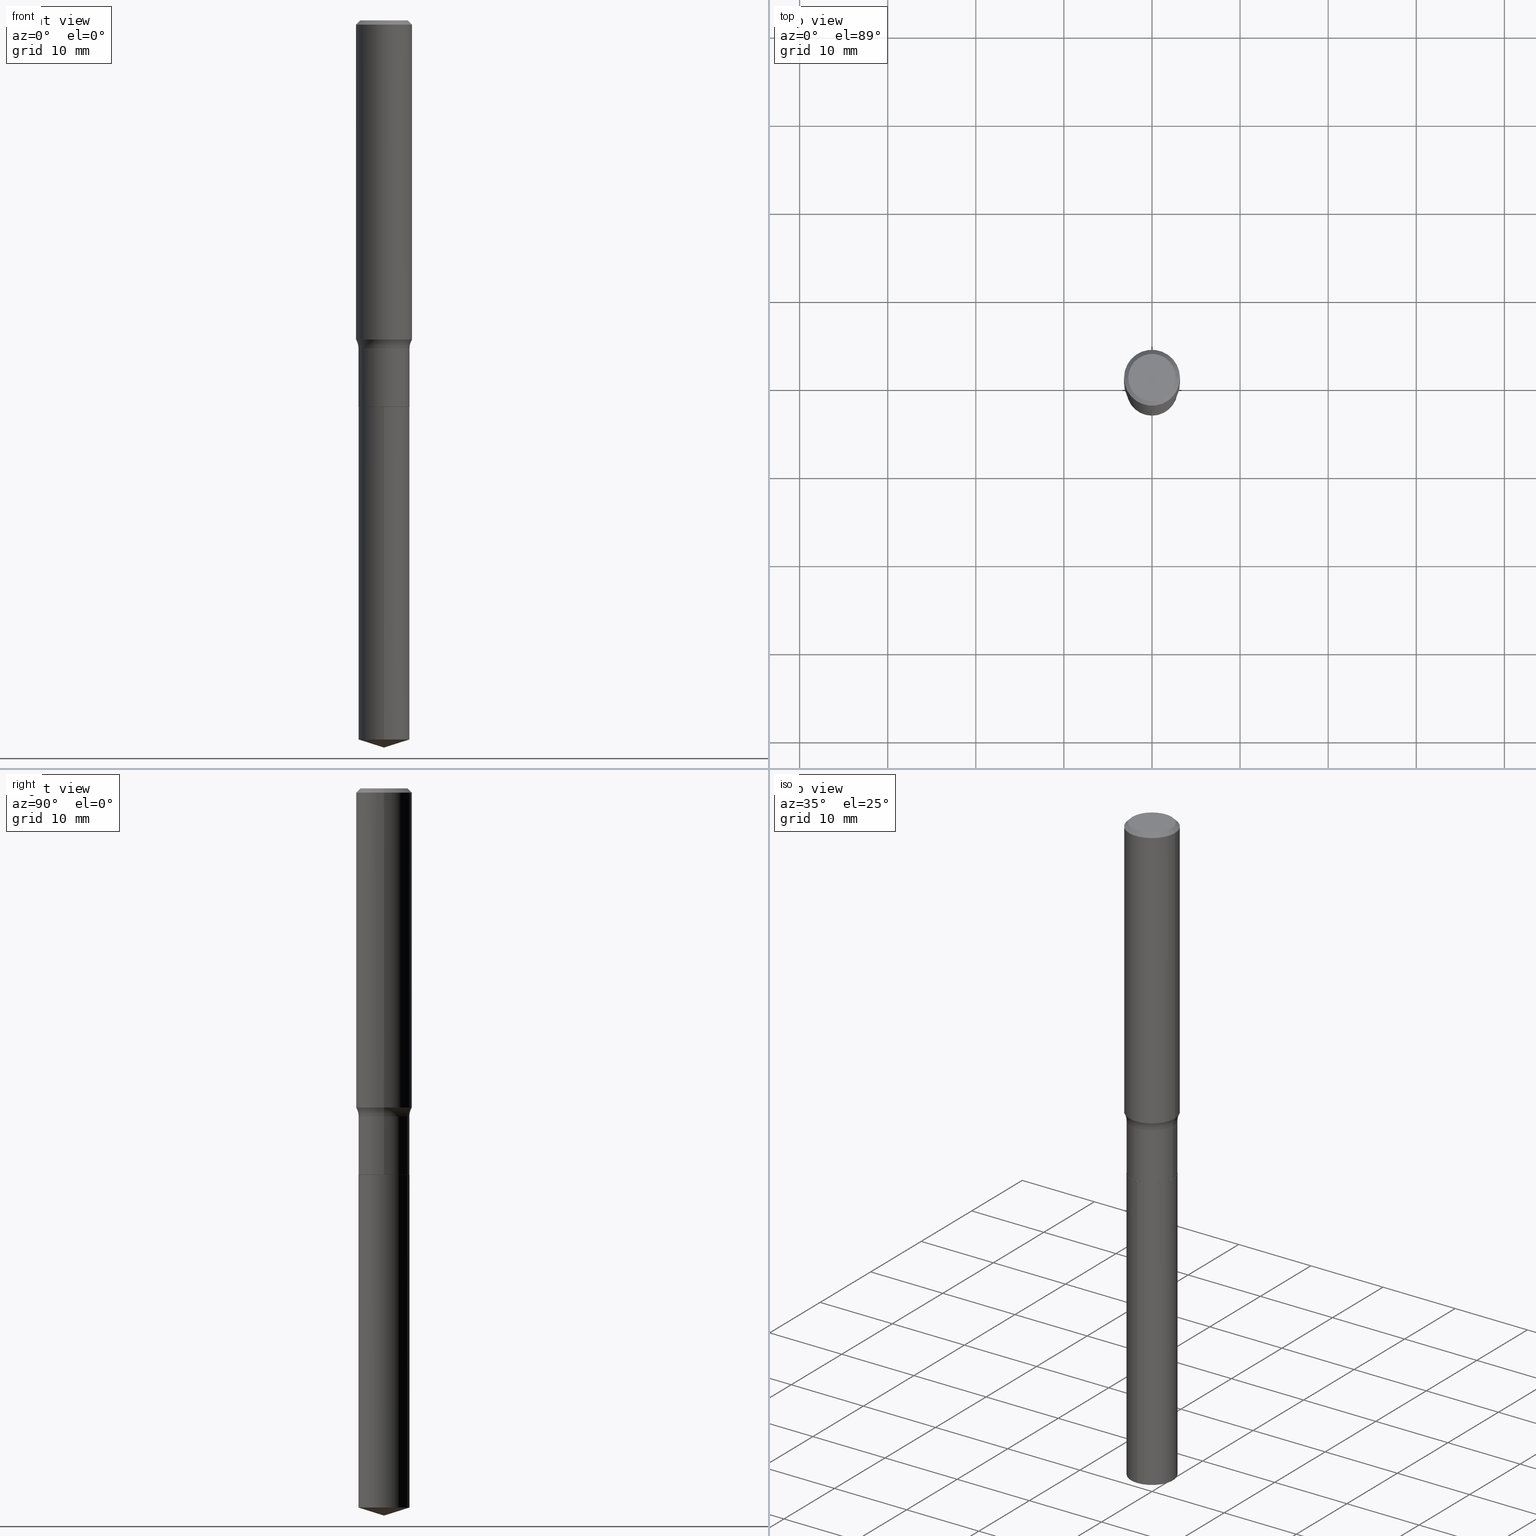
[diagram: canonical four-view strip — front | top / right | iso, engineering-drawing reading convention]
A machine part, canonical four-view strip (front | top / right | iso — engineering-drawing reading convention). The complete STEP part file that produces these views, byte-faithful:
ISO-10303-21;
HEADER;
FILE_DESCRIPTION (( 'STEP AP203' ),
    '1' );
FILE_NAME ('52336.STEP',
    '2024-04-19T13:44:54',
    ( '' ),
    ( '' ),
    'SwSTEP 2.0',
    'SolidWorks 2023',
    '' );
FILE_SCHEMA (( 'CONFIG_CONTROL_DESIGN' ));
ENDSEC;

DATA;
#1 = EDGE_CURVE ( 'NONE', #425, #281, #75, .T. ) ;
#2 = ORIENTED_EDGE ( 'NONE', *, *, #177, .T. ) ;
#3 = DIRECTION ( 'NONE',  ( -6.982962677686265922E-15, -1.000000000000000000, 2.396357889179178137E-15 ) ) ;
#4 = APPROVAL_STATUS ( 'not_yet_approved' ) ;
#5 = AXIS2_PLACEMENT_3D ( 'NONE', #153, #416, #223 ) ;
#6 = DIRECTION ( 'NONE',  ( -2.445468806185136597E-29, 3.491481338843145583E-15, 1.000000000000000000 ) ) ;
#7 = DIRECTION ( 'NONE',  ( -2.445468806185136597E-29, 3.491481338843145583E-15, 1.000000000000000000 ) ) ;
#8 = CONICAL_SURFACE ( 'NONE', #310, 124.8659371009149908, 1.265363707695891460 ) ;
#9 = DIRECTION ( 'NONE',  ( -2.445468806185136597E-29, 3.491481338843145583E-15, 1.000000000000000000 ) ) ;
#10 = PERSON_AND_ORGANIZATION_ROLE ( 'design_owner' ) ;
#11 = ORIENTED_EDGE ( 'NONE', *, *, #163, .T. ) ;
#12 = EDGE_CURVE ( 'NONE', #176, #226, #278, .T. ) ;
#13 = CARTESIAN_POINT ( 'NONE',  ( 3.584568176106173081E-29, -5.117813346476282599E-15, -1.465799999999999992 ) ) ;
#14 = CARTESIAN_POINT ( 'NONE',  ( 3.584568176106173081E-29, -5.117813346476282599E-15, -1.465799999999999992 ) ) ;
#15 = AXIS2_PLACEMENT_3D ( 'NONE', #415, #419, #383 ) ;
#16 = ORIENTED_EDGE ( 'NONE', *, *, #139, .T. ) ;
#17 = VERTEX_POINT ( 'NONE', #433 ) ;
#18 = CC_DESIGN_DATE_AND_TIME_ASSIGNMENT ( #339, #116, ( #309 ) ) ;
#19 = ORIENTED_EDGE ( 'NONE', *, *, #177, .F. ) ;
#20 = AXIS2_PLACEMENT_3D ( 'NONE', #57, #189, #492 ) ;
#21 = VECTOR ( 'NONE', #79, 39.37007874015748143 ) ;
#22 = ORIENTED_EDGE ( 'NONE', *, *, #1, .F. ) ;
#23 = EDGE_LOOP ( 'NONE', ( #242, #333, #434, #202 ) ) ;
#24 = AXIS2_PLACEMENT_3D ( 'NONE', #255, #26, #277 ) ;
#25 = CARTESIAN_POINT ( 'NONE',  ( 0.1250000000000000000, -9.383356098140926809E-16, -0.01875000000000012768 ) ) ;
#26 = DIRECTION ( 'NONE',  ( -2.445468806185136597E-29, 3.491481338843145583E-15, 1.000000000000000000 ) ) ;
#27 = PLANE ( 'NONE',  #301 ) ;
#28 = EDGE_CURVE ( 'NONE', #281, #425, #61, .T. ) ;
#29 = CARTESIAN_POINT ( 'NONE',  ( -0.1250000000000000000, -1.633740458479338781E-15, -0.01875000000000012768 ) ) ;
#30 = SECURITY_CLASSIFICATION_LEVEL ( 'unclassified' ) ;
#31 = DIRECTION ( 'NONE',  ( 1.000000000000000000, -6.982962677686268288E-15, 4.883557194083113462E-29 ) ) ;
#32 = DIRECTION ( 'NONE',  ( 6.776566513254256560E-15, 0.9537169507482287090, 0.3007057995042674015 ) ) ;
#33 = APPROVAL_ROLE ( '' ) ;
#34 = DIRECTION ( 'NONE',  ( 1.000000000000000000, -6.982962677686268288E-15, 0.000000000000000000 ) ) ;
#35 = CC_DESIGN_APPROVAL ( #390, ( #241 ) ) ;
#36 = CARTESIAN_POINT ( 'NONE',  ( 3.584568176106173081E-29, -5.117813346476282599E-15, -1.465799999999999992 ) ) ;
#37 = CARTESIAN_POINT ( 'NONE',  ( 4.225770097087915869E-29, -6.033279753520955359E-15, -1.727999999999999980 ) ) ;
#38 = CIRCLE ( 'NONE', #15, 0.1140000000000000041 ) ;
#39 = DIRECTION ( 'NONE',  ( -6.659769872151631300E-15, -0.9537169507482265995, 0.3007057995042740073 ) ) ;
#40 = ADVANCED_FACE ( 'NONE', ( #395 ), #236, .T. ) ;
#41 = VERTEX_POINT ( 'NONE', #216 ) ;
#42 = DIRECTION ( 'NONE',  ( 1.000000000000000000, -6.982962677686268288E-15, 0.000000000000000000 ) ) ;
#43 = CONICAL_SURFACE ( 'NONE', #5, 0.1135000000000000037, 0.7853981633975507526 ) ;
#44 = EDGE_CURVE ( 'NONE', #251, #176, #185, .T. ) ;
#45 = ORIENTED_EDGE ( 'NONE', *, *, #28, .T. ) ;
#46 = FACE_OUTER_BOUND ( 'NONE', #469, .T. ) ;
#47 = ADVANCED_FACE ( 'NONE', ( #418 ), #27, .F. ) ;
#48 = CARTESIAN_POINT ( 'NONE',  ( 4.585254011597162123E-31, -6.546527510330942834E-17, -0.01875000000000012768 ) ) ;
#49 = APPLICATION_PROTOCOL_DEFINITION ( 'international standard', 'config_control_design', 1994, #224 ) ;
#50 = CARTESIAN_POINT ( 'NONE',  ( 4.224547362684823628E-29, -6.031534012851534644E-15, -1.727500000000000036 ) ) ;
#51 = MECHANICAL_CONTEXT ( 'NONE', #460, 'mechanical' ) ;
#52 = AXIS2_PLACEMENT_3D ( 'NONE', #14, #286, #429 ) ;
#53 = ORIENTED_EDGE ( 'NONE', *, *, #351, .F. ) ;
#54 = CALENDAR_DATE ( 2024, 19, 4 ) ;
#55 = CIRCLE ( 'NONE', #437, 0.1135000000000000037 ) ;
#56 = ORGANIZATION ( 'UNSPECIFIED', 'UNSPECIFIED', '' ) ;
#57 = CARTESIAN_POINT ( 'NONE',  ( 4.585254011597162123E-31, -6.546527510330942834E-17, -0.01875000000000012768 ) ) ;
#58 = EDGE_CURVE ( 'NONE', #145, #446, #489, .T. ) ;
#59 = PERSON_AND_ORGANIZATION ( #367, #56 ) ;
#60 = ORIENTED_EDGE ( 'NONE', *, *, #92, .T. ) ;
#61 = CIRCLE ( 'NONE', #338, 0.1062499999999999972 ) ;
#62 = DIMENSIONAL_EXPONENTS ( 1.000000000000000000, 0.000000000000000000, 0.000000000000000000, 0.000000000000000000, 0.000000000000000000, 0.000000000000000000, 0.000000000000000000 ) ;
#63 = ORIENTED_EDGE ( 'NONE', *, *, #139, .F. ) ;
#64 = AXIS2_PLACEMENT_3D ( 'NONE', #178, #149, #407 ) ;
#65 = DIRECTION ( 'NONE',  ( -2.445468806185136597E-29, 3.491481338843145583E-15, 1.000000000000000000 ) ) ;
#66 = ORIENTED_EDGE ( 'NONE', *, *, #58, .F. ) ;
#67 = EDGE_LOOP ( 'NONE', ( #247, #208, #363, #231 ) ) ;
#68 =( CONVERSION_BASED_UNIT ( 'INCH', #412 ) LENGTH_UNIT ( ) NAMED_UNIT ( #62 ) );
#69 = CARTESIAN_POINT ( 'NONE',  ( 7.947814249978315045E-29, -1.134725670447899003E-14, -3.250000000000000000 ) ) ;
#70 = PERSON_AND_ORGANIZATION ( #367, #56 ) ;
#71 = ADVANCED_FACE ( 'NONE', ( #413 ), #294, .F. ) ;
#72 = CARTESIAN_POINT ( 'NONE',  ( -0.1062499999999999972, 7.746724220558198188E-16, 6.505936120465015526E-18 ) ) ;
#73 = DIRECTION ( 'NONE',  ( -2.445468806185136597E-29, 3.491481338843145583E-15, 1.000000000000000000 ) ) ;
#74 = CYLINDRICAL_SURFACE ( 'NONE', #453, 0.1140000000000000041 ) ;
#75 = CIRCLE ( 'NONE', #272, 0.1062499999999999972 ) ;
#76 = DIRECTION ( 'NONE',  ( -2.445481192190742452E-29, 3.491463601378150534E-15, 1.000000000000000000 ) ) ;
#77 = ADVANCED_FACE ( 'NONE', ( #452 ), #43, .T. ) ;
#78 = DIRECTION ( 'NONE',  ( 0.7071067811865451302, -7.319954787623248157E-15, -0.7071067811865499042 ) ) ;
#79 = DIRECTION ( 'NONE',  ( -2.445468806185136877E-29, 3.491481338843145188E-15, 1.000000000000000000 ) ) ;
#80 = CIRCLE ( 'NONE', #475, 0.1250000000000000000 ) ;
#81 = CONICAL_SURFACE ( 'NONE', #298, 0.1250000000000000000, 0.7853981633974449483 ) ;
#82 = CC_DESIGN_PERSON_AND_ORGANIZATION_ASSIGNMENT ( #70, #256, ( #309 ) ) ;
#83 = CARTESIAN_POINT ( 'NONE',  ( 4.225770097087915869E-29, -6.033279753520955359E-15, -1.727999999999999980 ) ) ;
#84 = LINE ( 'NONE', #268, #194 ) ;
#85 = CIRCLE ( 'NONE', #362, 0.1250000000000000000 ) ;
#86 = CARTESIAN_POINT ( 'NONE',  ( 0.000000000000000000, 0.000000000000000000, 0.000000000000000000 ) ) ;
#87 = ORIENTED_EDGE ( 'NONE', *, *, #334, .T. ) ;
#88 = ADVANCED_FACE ( 'NONE', ( #125 ), #74, .T. ) ;
#89 = DATE_AND_TIME ( #204, #454 ) ;
#90 = VECTOR ( 'NONE', #258, 39.37007874015748143 ) ;
#91 = CIRCLE ( 'NONE', #408, 0.1140000000000000041 ) ;
#92 = EDGE_CURVE ( 'NONE', #481, #41, #113, .T. ) ;
#93 = LINE ( 'NONE', #239, #421 ) ;
#94 = ORIENTED_EDGE ( 'NONE', *, *, #334, .F. ) ;
#95 = CIRCLE ( 'NONE', #327, 0.1140000000000000041 ) ;
#96 = VECTOR ( 'NONE', #76, 39.37007874015748143 ) ;
#97 = AXIS2_PLACEMENT_3D ( 'NONE', #299, #382, #451 ) ;
#98 = CARTESIAN_POINT ( 'NONE',  ( 3.486902385253749219E-29, -4.978372481255620459E-15, -1.425862548904567761 ) ) ;
#99 = APPLICATION_PROTOCOL_DEFINITION ( 'international standard', 'config_control_design', 1994, #460 ) ;
#100 = ORIENTED_EDGE ( 'NONE', *, *, #130, .T. ) ;
#101 = ORIENTED_EDGE ( 'NONE', *, *, #44, .F. ) ;
#102 = CARTESIAN_POINT ( 'NONE',  ( -1.591006383764330940E-46, 2.271535455632768948E-32, 6.505936120470318766E-18 ) ) ;
#103 = CIRCLE ( 'NONE', #329, 0.1250000000000001665 ) ;
#104 = VERTEX_POINT ( 'NONE', #187 ) ;
#105 = AXIS2_PLACEMENT_3D ( 'NONE', #124, #444, #219 ) ;
#106 = DIRECTION ( 'NONE',  ( 1.000000000000000000, -6.982962677686266711E-15, 0.000000000000000000 ) ) ;
#107 = LINE ( 'NONE', #261, #199 ) ;
#108 = VERTEX_POINT ( 'NONE', #183 ) ;
#109 = APPROVAL_DATE_TIME ( #356, #390 ) ;
#110 = ORIENTED_EDGE ( 'NONE', *, *, #287, .T. ) ;
#111 = DIRECTION ( 'NONE',  ( -2.445481192190742172E-29, 3.491463601378150534E-15, 1.000000000000000000 ) ) ;
#112 = DIRECTION ( 'NONE',  ( -0.7071067811866199593, 7.493145998870616062E-15, 0.7071067811864750752 ) ) ;
#113 = LINE ( 'NONE', #69, #114 ) ;
#114 = VECTOR ( 'NONE', #32, 39.37007874015748143 ) ;
#115 = PRODUCT_RELATED_PRODUCT_CATEGORY ( 'detail', '', ( #316 ) ) ;
#116 = DATE_TIME_ROLE ( 'classification_date' ) ;
#117 = ORIENTED_EDGE ( 'NONE', *, *, #243, .F. ) ;
#118 = CARTESIAN_POINT ( 'NONE',  ( -0.1919999999999999485, -3.753571293816890609E-15, -1.465799999999999992 ) ) ;
#119 = DIRECTION ( 'NONE',  ( 1.000000000000000000, -6.982962677686269077E-15, 0.000000000000000000 ) ) ;
#120 = AXIS2_PLACEMENT_3D ( 'NONE', #386, #346, #42 ) ;
#121 = DIRECTION ( 'NONE',  ( -2.445481192190742172E-29, 3.491463601378150534E-15, 1.000000000000000000 ) ) ;
#122 = EDGE_CURVE ( 'NONE', #235, #226, #450, .T. ) ;
#123 = VECTOR ( 'NONE', #341, 39.37007874015748143 ) ;
#124 = CARTESIAN_POINT ( 'NONE',  ( 4.225770097087915869E-29, -6.033279753520955359E-15, -1.727999999999999980 ) ) ;
#125 = FACE_OUTER_BOUND ( 'NONE', #431, .T. ) ;
#126 = AXIS2_PLACEMENT_3D ( 'NONE', #190, #336, #150 ) ;
#127 = DIRECTION ( 'NONE',  ( -0.7071067811865451302, 2.468850131082231817E-15, -0.7071067811865499042 ) ) ;
#128 = AXIS2_PLACEMENT_3D ( 'NONE', #373, #121, #488 ) ;
#129 = CARTESIAN_POINT ( 'NONE',  ( 0.1140000000000000041, -6.827591758107768670E-15, -1.727500000000000036 ) ) ;
#130 = EDGE_CURVE ( 'NONE', #251, #235, #91, .T. ) ;
#131 = CARTESIAN_POINT ( 'NONE',  ( 3.486902385253749219E-29, -4.978372481255620459E-15, -1.425862548904567761 ) ) ;
#132 = EDGE_LOOP ( 'NONE', ( #142, #138, #63, #312 ) ) ;
#133 = APPROVAL_STATUS ( 'not_yet_approved' ) ;
#134 = CARTESIAN_POINT ( 'NONE',  ( 0.1250000000000001943, -5.851242815966405376E-15, -1.425862548904567761 ) ) ;
#135 = ADVANCED_FACE ( 'NONE', ( #146 ), #170, .T. ) ;
#136 = AXIS2_PLACEMENT_3D ( 'NONE', #36, #456, #31 ) ;
#137 = DIRECTION ( 'NONE',  ( -2.445468806185136597E-29, 3.491481338843145583E-15, 1.000000000000000000 ) ) ;
#138 = ORIENTED_EDGE ( 'NONE', *, *, #317, .T. ) ;
#139 = EDGE_CURVE ( 'NONE', #235, #251, #95, .T. ) ;
#140 = ORIENTED_EDGE ( 'NONE', *, *, #361, .F. ) ;
#141 = CYLINDRICAL_SURFACE ( 'NONE', #64, 0.1250000000000000833 ) ;
#142 = ORIENTED_EDGE ( 'NONE', *, *, #409, .T. ) ;
#143 = ORIENTED_EDGE ( 'NONE', *, *, #28, .F. ) ;
#144 = CYLINDRICAL_SURFACE ( 'NONE', #248, 0.1140000000000000041 ) ;
#145 = VERTEX_POINT ( 'NONE', #134 ) ;
#146 = FACE_OUTER_BOUND ( 'NONE', #67, .T. ) ;
#147 = EDGE_CURVE ( 'NONE', #481, #350, #84, .T. ) ;
#148 = EDGE_LOOP ( 'NONE', ( #397, #22, #403, #240 ) ) ;
#149 = DIRECTION ( 'NONE',  ( -2.445468806185136597E-29, 3.491481338843145583E-15, 1.000000000000000000 ) ) ;
#150 = DIRECTION ( 'NONE',  ( 1.000000000000000000, -6.982962677686267499E-15, 4.876176775795936353E-29 ) ) ;
#151 = LOCAL_TIME ( 9, 44, 54.00000000000000000, #166 ) ;
#152 = CYLINDRICAL_SURFACE ( 'NONE', #126, 0.1139999999999999764 ) ;
#153 = CARTESIAN_POINT ( 'NONE',  ( 4.225770097087915869E-29, -6.033279753520955359E-15, -1.727999999999999980 ) ) ;
#154 = EDGE_CURVE ( 'NONE', #425, #321, #222, .T. ) ;
#155 = FACE_OUTER_BOUND ( 'NONE', #148, .T. ) ;
#156 = CARTESIAN_POINT ( 'NONE',  ( 0.1250000000000000833, -8.728703347107839305E-16, 6.095220969744923945E-30 ) ) ;
#157 = ORIENTED_EDGE ( 'NONE', *, *, #92, .F. ) ;
#158 = CARTESIAN_POINT ( 'NONE',  ( -0.1135000000000000037, -5.224164521259130914E-15, -1.727999999999999980 ) ) ;
#159 = ADVANCED_FACE ( 'NONE', ( #343 ), #270, .T. ) ;
#160 = DATE_AND_TIME ( #54, #151 ) ;
#161 = LOCAL_TIME ( 9, 44, 54.00000000000000000, #296 ) ;
#162 = DIRECTION ( 'NONE',  ( 1.000000000000000000, -6.982962677686265133E-15, 0.000000000000000000 ) ) ;
#163 = EDGE_CURVE ( 'NONE', #41, #175, #491, .T. ) ;
#164 = AXIS2_PLACEMENT_3D ( 'NONE', #118, #295, #442 ) ;
#165 = CARTESIAN_POINT ( 'NONE',  ( -0.1140000000000000041, -4.764654960897394479E-15, -1.727500000000000036 ) ) ;
#166 = COORDINATED_UNIVERSAL_TIME_OFFSET ( 5, 0, .BEHIND. ) ;
#167 = DIRECTION ( 'NONE',  ( 1.000000000000000000, -6.982962677686268288E-15, 4.883557194083113462E-29 ) ) ;
#168 = APPROVAL_DATE_TIME ( #89, #455 ) ;
#169 = ORIENTED_EDGE ( 'NONE', *, *, #351, .T. ) ;
#170 = CONICAL_SURFACE ( 'NONE', #400, 0.1135000000000000037, 0.7853981633975507526 ) ;
#171 = ADVANCED_FACE ( 'NONE', ( #155 ), #81, .T. ) ;
#172 = DIRECTION ( 'NONE',  ( -2.445481192190742172E-29, 3.491463601378150534E-15, 1.000000000000000000 ) ) ;
#173 = ORIENTED_EDGE ( 'NONE', *, *, #249, .F. ) ;
#174 = CIRCLE ( 'NONE', #120, 0.07800000000000002764 ) ;
#175 = VERTEX_POINT ( 'NONE', #230 ) ;
#176 = VERTEX_POINT ( 'NONE', #426 ) ;
#177 = EDGE_CURVE ( 'NONE', #145, #226, #174, .T. ) ;
#178 = CARTESIAN_POINT ( 'NONE',  ( 0.000000000000000000, 0.000000000000000000, 0.000000000000000000 ) ) ;
#179 = CIRCLE ( 'NONE', #342, 0.1139999999999999625 ) ;
#180 = MANIFOLD_SOLID_BREP ( 'Body-Move/Copy2[1]', #285 ) ;
#181 = EDGE_CURVE ( 'NONE', #404, #108, #297, .T. ) ;
#182 = CARTESIAN_POINT ( 'NONE',  ( 4.585254011597162123E-31, -6.546527510330942834E-17, -0.01875000000000012768 ) ) ;
#183 = CARTESIAN_POINT ( 'NONE',  ( 0.1135000000000000037, -6.825846017438347167E-15, -1.727999999999999980 ) ) ;
#184 = CALENDAR_DATE ( 2024, 19, 4 ) ;
#185 = LINE ( 'NONE', #445, #123 ) ;
#186 = LINE ( 'NONE', #487, #471 ) ;
#187 = CARTESIAN_POINT ( 'NONE',  ( -7.960577452561921181E-16, -0.1140000000000060271, -1.727999999999999758 ) ) ;
#188 = LOCAL_TIME ( 9, 44, 54.00000000000000000, #477 ) ;
#189 = DIRECTION ( 'NONE',  ( 2.445468806185136597E-29, -3.491481338843145583E-15, -1.000000000000000000 ) ) ;
#190 = CARTESIAN_POINT ( 'NONE',  ( 0.000000000000000000, 0.000000000000000000, 0.000000000000000000 ) ) ;
#191 = ORIENTED_EDGE ( 'NONE', *, *, #122, .T. ) ;
#192 = DIRECTION ( 'NONE',  ( -2.445468806185136597E-29, 3.491481338843145583E-15, 1.000000000000000000 ) ) ;
#193 = CC_DESIGN_PERSON_AND_ORGANIZATION_ASSIGNMENT ( #323, #411, ( #241 ) ) ;
#194 = VECTOR ( 'NONE', #39, 39.37007874015748854 ) ;
#195 = FACE_OUTER_BOUND ( 'NONE', #359, .T. ) ;
#196 = DIRECTION ( 'NONE',  ( 1.000000000000000000, -6.982962677686266711E-15, 0.000000000000000000 ) ) ;
#197 = CC_DESIGN_PERSON_AND_ORGANIZATION_ASSIGNMENT ( #234, #10, ( #316 ) ) ;
#198 = CALENDAR_DATE ( 2024, 19, 4 ) ;
#199 = VECTOR ( 'NONE', #112, 39.37007874015748143 ) ;
#200 = COORDINATED_UNIVERSAL_TIME_OFFSET ( 5, 0, .BEHIND. ) ;
#201 = CARTESIAN_POINT ( 'NONE',  ( 4.225770097087915869E-29, -6.033279753520955359E-15, -1.727999999999999980 ) ) ;
#202 = ORIENTED_EDGE ( 'NONE', *, *, #448, .F. ) ;
#203 = ADVANCED_FACE ( 'NONE', ( #195 ), #463, .F. ) ;
#204 = CALENDAR_DATE ( 2024, 19, 4 ) ;
#205 = ORIENTED_EDGE ( 'NONE', *, *, #1, .T. ) ;
#206 = AXIS2_PLACEMENT_3D ( 'NONE', #131, #271, #119 ) ;
#207 = ORIENTED_EDGE ( 'NONE', *, *, #147, .F. ) ;
#208 = ORIENTED_EDGE ( 'NONE', *, *, #181, .T. ) ;
#209 = CIRCLE ( 'NONE', #164, 0.07800000000000002764 ) ;
#210 = DIRECTION ( 'NONE',  ( 1.000000000000000000, -6.982962677686266711E-15, 4.875930095424100059E-29 ) ) ;
#211 = ORIENTED_EDGE ( 'NONE', *, *, #228, .F. ) ;
#212 = CARTESIAN_POINT ( 'NONE',  ( 7.947813874619912198E-29, -1.134725670447899003E-14, -3.250000000000000000 ) ) ;
#213 = PRODUCT_DEFINITION ( 'UNKNOWN', '', #241, #423 ) ;
#214 = ORIENTED_EDGE ( 'NONE', *, *, #44, .T. ) ;
#215 = PERSON_AND_ORGANIZATION_ROLE ( 'creator' ) ;
#216 = CARTESIAN_POINT ( 'NONE',  ( 8.100187187665928313E-16, 0.1139999999999888047, -3.214055938067796880 ) ) ;
#217 = CARTESIAN_POINT ( 'NONE',  ( 4.225770097087915869E-29, -6.033279753520955359E-15, -1.727999999999999980 ) ) ;
#218 = PERSON_AND_ORGANIZATION ( #367, #56 ) ;
#219 = DIRECTION ( 'NONE',  ( -6.982962677686265922E-15, -1.000000000000000000, 2.396357889179178137E-15 ) ) ;
#220 = AXIS2_PLACEMENT_3D ( 'NONE', #250, #254, #245 ) ;
#221 = CC_DESIGN_APPROVAL ( #274, ( #309 ) ) ;
#222 = LINE ( 'NONE', #374, #399 ) ;
#223 = DIRECTION ( 'NONE',  ( 1.000000000000000000, -6.982962677686268288E-15, 0.000000000000000000 ) ) ;
#224 = APPLICATION_CONTEXT ( 'configuration controlled 3d designs of mechanical parts and assemblies' ) ;
#225 = ORIENTED_EDGE ( 'NONE', *, *, #409, .F. ) ;
#226 = VERTEX_POINT ( 'NONE', #306 ) ;
#227 = DIRECTION ( 'NONE',  ( 2.445468806185136597E-29, -3.491481338843145583E-15, -1.000000000000000000 ) ) ;
#228 = EDGE_CURVE ( 'NONE', #350, #104, #186, .T. ) ;
#229 = ORIENTED_EDGE ( 'NONE', *, *, #357, .T. ) ;
#230 = CARTESIAN_POINT ( 'NONE',  ( 8.100187187665930286E-16, 0.1139999999999939950, -1.728000000000000203 ) ) ;
#231 = ORIENTED_EDGE ( 'NONE', *, *, #130, .F. ) ;
#232 = ORIENTED_EDGE ( 'NONE', *, *, #12, .T. ) ;
#233 = CC_DESIGN_PERSON_AND_ORGANIZATION_ASSIGNMENT ( #465, #354, ( #213 ) ) ;
#234 = PERSON_AND_ORGANIZATION ( #367, #56 ) ;
#235 = VERTEX_POINT ( 'NONE', #129 ) ;
#236 = CONICAL_SURFACE ( 'NONE', #20, 0.1250000000000000000, 0.7853981633974449483 ) ;
#237 = DIRECTION ( 'NONE',  ( 1.000000000000000000, 0.000000000000000000, 0.000000000000000000 ) ) ;
#238 = CONICAL_SURFACE ( 'NONE', #128, 124.8659371009149908, 1.265363707695891460 ) ;
#239 = CARTESIAN_POINT ( 'NONE',  ( 0.1135000000000000037, -6.825846017438347167E-15, -1.727999999999999980 ) ) ;
#240 = ORIENTED_EDGE ( 'NONE', *, *, #448, .T. ) ;
#241 = PRODUCT_DEFINITION_FORMATION_WITH_SPECIFIED_SOURCE ( 'ANY', '', #316, .NOT_KNOWN. ) ;
#242 = ORIENTED_EDGE ( 'NONE', *, *, #484, .F. ) ;
#243 = EDGE_CURVE ( 'NONE', #17, #145, #485, .T. ) ;
#244 = ORIENTED_EDGE ( 'NONE', *, *, #154, .F. ) ;
#245 = DIRECTION ( 'NONE',  ( -1.000000000000000000, 6.982962677686265922E-15, -4.876176775795935793E-29 ) ) ;
#246 = CARTESIAN_POINT ( 'NONE',  ( -1.591006383764330940E-46, 2.271535455632768948E-32, 6.505936120470318766E-18 ) ) ;
#247 = ORIENTED_EDGE ( 'NONE', *, *, #317, .F. ) ;
#248 = AXIS2_PLACEMENT_3D ( 'NONE', #201, #172, #288 ) ;
#249 = EDGE_CURVE ( 'NONE', #175, #104, #398, .T. ) ;
#250 = CARTESIAN_POINT ( 'NONE',  ( -7.955031918821654702E-47, 1.135767727816384474E-32, 3.252968060235159383E-18 ) ) ;
#251 = VERTEX_POINT ( 'NONE', #165 ) ;
#252 = DATE_AND_TIME ( #184, #161 ) ;
#253 = EDGE_LOOP ( 'NONE', ( #87, #440 ) ) ;
#254 = DIRECTION ( 'NONE',  ( 2.438088387897960049E-29, -3.491481338843145188E-15, -1.000000000000000000 ) ) ;
#255 = CARTESIAN_POINT ( 'NONE',  ( 0.000000000000000000, 0.000000000000000000, 0.000000000000000000 ) ) ;
#256 = PERSON_AND_ORGANIZATION_ROLE ( 'classification_officer' ) ;
#257 = FACE_OUTER_BOUND ( 'NONE', #304, .T. ) ;
#258 = DIRECTION ( 'NONE',  ( -2.445468806185136877E-29, 3.491481338843145188E-15, 1.000000000000000000 ) ) ;
#259 = CC_DESIGN_PERSON_AND_ORGANIZATION_ASSIGNMENT ( #480, #215, ( #241 ) ) ;
#260 = APPROVAL_STATUS ( 'not_yet_approved' ) ;
#261 = CARTESIAN_POINT ( 'NONE',  ( -0.1135000000000000037, -5.226813748433241326E-15, -1.727999999999999980 ) ) ;
#262 = DIRECTION ( 'NONE',  ( -2.445468806185136597E-29, 3.491481338843145583E-15, 1.000000000000000000 ) ) ;
#263 = DIRECTION ( 'NONE',  ( -2.445481192190742452E-29, 3.491463601378150534E-15, 1.000000000000000000 ) ) ;
#264 = DIRECTION ( 'NONE',  ( 1.000000000000000000, -6.982962677686267499E-15, 0.000000000000000000 ) ) ;
#265 = DIRECTION ( 'NONE',  ( 1.000000000000000000, -6.982962677686269077E-15, 0.000000000000000000 ) ) ;
#266 = CARTESIAN_POINT ( 'NONE',  ( -7.960577452561559291E-16, -0.1140000000000112312, -3.214055938067795548 ) ) ;
#267 = DIRECTION ( 'NONE',  ( -2.445481192190742172E-29, 3.491463601378150534E-15, 1.000000000000000000 ) ) ;
#268 = CARTESIAN_POINT ( 'NONE',  ( 7.947771068584539762E-29, -1.134731800515801468E-14, -3.250000000000000000 ) ) ;
#269 = ADVANCED_FACE ( 'NONE', ( #462 ), #353, .F. ) ;
#270 = CYLINDRICAL_SURFACE ( 'NONE', #97, 0.1250000000000000833 ) ;
#271 = DIRECTION ( 'NONE',  ( -2.445468806185136597E-29, 3.491481338843145583E-15, 1.000000000000000000 ) ) ;
#272 = AXIS2_PLACEMENT_3D ( 'NONE', #102, #137, #360 ) ;
#273 = DIRECTION ( 'NONE',  ( -1.000000000000000000, 6.982962677686266711E-15, 0.000000000000000000 ) ) ;
#274 = APPROVAL ( #260, 'UNSPECIFIED' ) ;
#275 = APPROVAL_PERSON_ORGANIZATION ( #59, #455, #391 ) ;
#276 = APPROVAL_ROLE ( '' ) ;
#277 = DIRECTION ( 'NONE',  ( 1.000000000000000000, -6.982962677686267499E-15, 4.876176775795936353E-29 ) ) ;
#278 = CIRCLE ( 'NONE', #52, 0.1139999999999999625 ) ;
#279 = EDGE_LOOP ( 'NONE', ( #366, #11, #94, #211 ) ) ;
#280 = CC_DESIGN_DATE_AND_TIME_ASSIGNMENT ( #160, #308, ( #213 ) ) ;
#281 = VERTEX_POINT ( 'NONE', #468 ) ;
#282 = PRODUCT_DEFINITION_SHAPE ( 'NONE', 'NONE',  #213 ) ;
#283 = ORIENTED_EDGE ( 'NONE', *, *, #228, .T. ) ;
#284 = DIRECTION ( 'NONE',  ( -2.445468806185136597E-29, 3.491481338843145583E-15, 1.000000000000000000 ) ) ;
#285 = CLOSED_SHELL ( 'NONE', ( #313, #320, #303, #88, #47 ) ) ;
#286 = DIRECTION ( 'NONE',  ( -2.445468806185136597E-29, 3.491481338843145583E-15, 1.000000000000000000 ) ) ;
#287 = EDGE_CURVE ( 'NONE', #145, #17, #103, .T. ) ;
#288 = DIRECTION ( 'NONE',  ( -6.982962677686265922E-15, -1.000000000000000000, 2.396357889179178137E-15 ) ) ;
#289 = ORIENTED_EDGE ( 'NONE', *, *, #122, .F. ) ;
#290 = CIRCLE ( 'NONE', #105, 0.1140000000000000041 ) ;
#291 = FACE_OUTER_BOUND ( 'NONE', #466, .T. ) ;
#292 = SHAPE_DEFINITION_REPRESENTATION ( #282, #479 ) ;
#293 = EDGE_LOOP ( 'NONE', ( #53, #464, #2, #470 ) ) ;
#294 = PLANE ( 'NONE',  #369 ) ;
#295 = DIRECTION ( 'NONE',  ( 7.105427357601001859E-15, 1.000000000000000000, -3.491481338843145583E-15 ) ) ;
#296 = COORDINATED_UNIVERSAL_TIME_OFFSET ( 5, 0, .BEHIND. ) ;
#297 = CIRCLE ( 'NONE', #311, 0.1135000000000000037 ) ;
#298 = AXIS2_PLACEMENT_3D ( 'NONE', #457, #227, #273 ) ;
#299 = CARTESIAN_POINT ( 'NONE',  ( 0.000000000000000000, 0.000000000000000000, 0.000000000000000000 ) ) ;
#300 = DIRECTION ( 'NONE',  ( -2.438088387897960049E-29, 3.491481338843145188E-15, 1.000000000000000000 ) ) ;
#301 = AXIS2_PLACEMENT_3D ( 'NONE', #37, #337, #375 ) ;
#302 = ORIENTED_EDGE ( 'NONE', *, *, #163, .F. ) ;
#303 = ADVANCED_FACE ( 'NONE', ( #46 ), #8, .T. ) ;
#304 = EDGE_LOOP ( 'NONE', ( #207, #60, #324 ) ) ;
#305 = AXIS2_PLACEMENT_3D ( 'NONE', #335, #111, #482 ) ;
#306 = CARTESIAN_POINT ( 'NONE',  ( 0.1139999999999999625, -5.913871091732516626E-15, -1.465799999999999992 ) ) ;
#307 = EDGE_CURVE ( 'NONE', #108, #235, #93, .T. ) ;
#308 = DATE_TIME_ROLE ( 'creation_date' ) ;
#309 = SECURITY_CLASSIFICATION ( '', '', #30 ) ;
#310 = AXIS2_PLACEMENT_3D ( 'NONE', #358, #467, #472 ) ;
#311 = AXIS2_PLACEMENT_3D ( 'NONE', #379, #192, #340 ) ;
#312 = ORIENTED_EDGE ( 'NONE', *, *, #307, .F. ) ;
#313 = ADVANCED_FACE ( 'NONE', ( #436 ), #144, .T. ) ;
#314 = DIRECTION ( 'NONE',  ( 0.7071067811866199593, -2.468850131083015945E-15, 0.7071067811864750752 ) ) ;
#315 = EDGE_LOOP ( 'NONE', ( #101, #100, #191, #387 ) ) ;
#316 = PRODUCT ( '52336', '52336', '', ( #51 ) ) ;
#317 = EDGE_CURVE ( 'NONE', #404, #251, #107, .T. ) ;
#318 = ORIENTED_EDGE ( 'NONE', *, *, #357, .F. ) ;
#319 = DIRECTION ( 'NONE',  ( -2.445468806185136597E-29, 3.491481338843145583E-15, 1.000000000000000000 ) ) ;
#320 = ADVANCED_FACE ( 'NONE', ( #257 ), #238, .T. ) ;
#321 = VERTEX_POINT ( 'NONE', #29 ) ;
#322 = ORIENTED_EDGE ( 'NONE', *, *, #349, .T. ) ;
#323 = PERSON_AND_ORGANIZATION ( #367, #56 ) ;
#324 = ORIENTED_EDGE ( 'NONE', *, *, #430, .F. ) ;
#325 = PLANE ( 'NONE',  #220 ) ;
#326 = AXIS2_PLACEMENT_3D ( 'NONE', #86, #394, #237 ) ;
#327 = AXIS2_PLACEMENT_3D ( 'NONE', #50, #7, #162 ) ;
#328 = DIRECTION ( 'NONE',  ( -6.982962677686265922E-15, -1.000000000000000000, 2.396357889179178137E-15 ) ) ;
#329 = AXIS2_PLACEMENT_3D ( 'NONE', #98, #284, #265 ) ;
#330 = DIRECTION ( 'NONE',  ( -2.445468806185136877E-29, 3.491481338843145188E-15, 1.000000000000000000 ) ) ;
#331 = LINE ( 'NONE', #447, #392 ) ;
#332 = CARTESIAN_POINT ( 'NONE',  ( 4.225770097087915869E-29, -6.033279753520955359E-15, -1.727999999999999980 ) ) ;
#333 = ORIENTED_EDGE ( 'NONE', *, *, #243, .T. ) ;
#334 = EDGE_CURVE ( 'NONE', #104, #175, #290, .T. ) ;
#335 = CARTESIAN_POINT ( 'NONE',  ( 7.859891944176082660E-29, -1.122178997089652905E-14, -3.214055938067796436 ) ) ;
#336 = DIRECTION ( 'NONE',  ( -2.445468806185136597E-29, 3.491481338843145583E-15, 1.000000000000000000 ) ) ;
#337 = DIRECTION ( 'NONE',  ( 2.445481192190741892E-29, -3.491463601378150534E-15, -1.000000000000000000 ) ) ;
#338 = AXIS2_PLACEMENT_3D ( 'NONE', #246, #65, #210 ) ;
#339 = DATE_AND_TIME ( #439, #188 ) ;
#340 = DIRECTION ( 'NONE',  ( 1.000000000000000000, -6.982962677686268288E-15, 0.000000000000000000 ) ) ;
#341 = DIRECTION ( 'NONE',  ( -2.445468806185136877E-29, 3.491481338843145188E-15, 1.000000000000000000 ) ) ;
#342 = AXIS2_PLACEMENT_3D ( 'NONE', #449, #73, #264 ) ;
#343 = FACE_OUTER_BOUND ( 'NONE', #365, .T. ) ;
#344 = DIRECTION ( 'NONE',  ( 1.000000000000000000, -6.982962677686265922E-15, 4.876176775795935793E-29 ) ) ;
#345 = ADVANCED_FACE ( 'NONE', ( #291 ), #152, .T. ) ;
#346 = DIRECTION ( 'NONE',  ( -6.982962677686266711E-15, -1.000000000000000000, 3.491481338843145583E-15 ) ) ;
#347 = CYLINDRICAL_SURFACE ( 'NONE', #24, 0.1139999999999999764 ) ;
#348 = MANIFOLD_SOLID_BREP ( 'Body-Move/Copy2[2]', #483 ) ;
#349 = EDGE_CURVE ( 'NONE', #281, #446, #331, .T. ) ;
#350 = VERTEX_POINT ( 'NONE', #266 ) ;
#351 = EDGE_CURVE ( 'NONE', #17, #176, #209, .T. ) ;
#352 = DIRECTION ( 'NONE',  ( -2.445481192190742172E-29, 3.491463601378150534E-15, 1.000000000000000000 ) ) ;
#353 = TOROIDAL_SURFACE ( 'NONE', #377, 0.1919999999999999485, 0.07800000000000002764 ) ;
#354 = PERSON_AND_ORGANIZATION_ROLE ( 'creator' ) ;
#355 = CIRCLE ( 'NONE', #305, 0.1140000000000000041 ) ;
#356 = DATE_AND_TIME ( #198, #459 ) ;
#357 = EDGE_CURVE ( 'NONE', #41, #350, #38, .T. ) ;
#358 = CARTESIAN_POINT ( 'NONE',  ( -8.833099462252148952E-28, 1.261119095498331057E-13, 36.12007874015748143 ) ) ;
#359 = EDGE_LOOP ( 'NONE', ( #117, #169, #232, #19 ) ) ;
#360 = DIRECTION ( 'NONE',  ( 1.000000000000000000, -6.982962677686266711E-15, 4.875930095424100059E-29 ) ) ;
#361 = EDGE_CURVE ( 'NONE', #226, #176, #179, .T. ) ;
#362 = AXIS2_PLACEMENT_3D ( 'NONE', #182, #319, #106 ) ;
#363 = ORIENTED_EDGE ( 'NONE', *, *, #307, .T. ) ;
#364 = CARTESIAN_POINT ( 'NONE',  ( -0.1250000000000000833, 8.881784197001258240E-16, -6.148668862818636431E-30 ) ) ;
#365 = EDGE_LOOP ( 'NONE', ( #110, #406, #461, #66 ) ) ;
#366 = ORIENTED_EDGE ( 'NONE', *, *, #430, .T. ) ;
#367 = PERSON ( 'UNSPECIFIED', 'UNSPECIFIED', 'UNSPECIFIED', ('UNSPECIFIED'), ('UNSPECIFIED'), ('UNSPECIFIED') ) ;
#368 =( LENGTH_UNIT ( ) NAMED_UNIT ( * ) SI_UNIT ( $, .METRE. ) );
#369 = AXIS2_PLACEMENT_3D ( 'NONE', #332, #300, #344 ) ;
#370 = ORIENTED_EDGE ( 'NONE', *, *, #378, .T. ) ;
#371 = DIRECTION ( 'NONE',  ( 1.000000000000000000, -6.982962677686268288E-15, 0.000000000000000000 ) ) ;
#372 = ADVANCED_FACE ( 'NONE', ( #380 ), #347, .T. ) ;
#373 = CARTESIAN_POINT ( 'NONE',  ( -8.833099462252148952E-28, 1.261119095498331057E-13, 36.12007874015748143 ) ) ;
#374 = CARTESIAN_POINT ( 'NONE',  ( -0.1250000000000000000, 8.074050596074739968E-16, -0.01875000000000012768 ) ) ;
#375 = DIRECTION ( 'NONE',  ( 6.982962677686265922E-15, 1.000000000000000000, -3.491463601378150534E-15 ) ) ;
#376 = APPROVAL_DATE_TIME ( #252, #274 ) ;
#377 = AXIS2_PLACEMENT_3D ( 'NONE', #13, #9, #167 ) ;
#378 = EDGE_CURVE ( 'NONE', #446, #321, #80, .T. ) ;
#379 = CARTESIAN_POINT ( 'NONE',  ( 4.225770097087915869E-29, -6.033279753520955359E-15, -1.727999999999999980 ) ) ;
#380 = FACE_OUTER_BOUND ( 'NONE', #315, .T. ) ;
#381 = APPROVAL_PERSON_ORGANIZATION ( #218, #274, #33 ) ;
#382 = DIRECTION ( 'NONE',  ( -2.445468806185136597E-29, 3.491481338843145583E-15, 1.000000000000000000 ) ) ;
#383 = DIRECTION ( 'NONE',  ( -6.982962677686265922E-15, -1.000000000000000000, 4.792715778358356274E-15 ) ) ;
#384 = DIRECTION ( 'NONE',  ( -2.445468806185136597E-29, 3.491481338843145583E-15, 1.000000000000000000 ) ) ;
#385 = EDGE_LOOP ( 'NONE', ( #143, #322, #370, #244 ) ) ;
#386 = CARTESIAN_POINT ( 'NONE',  ( 0.1919999999999999485, -6.458542180592045461E-15, -1.465799999999999992 ) ) ;
#387 = ORIENTED_EDGE ( 'NONE', *, *, #12, .F. ) ;
#388 = COORDINATED_UNIVERSAL_TIME_OFFSET ( 5, 0, .BEHIND. ) ;
#389 = FACE_OUTER_BOUND ( 'NONE', #432, .T. ) ;
#390 = APPROVAL ( #133, 'UNSPECIFIED' ) ;
#391 = APPROVAL_ROLE ( '' ) ;
#392 = VECTOR ( 'NONE', #78, 39.37007874015748143 ) ;
#393 = VECTOR ( 'NONE', #330, 39.37007874015748143 ) ;
#394 = DIRECTION ( 'NONE',  ( 0.000000000000000000, 0.000000000000000000, 1.000000000000000000 ) ) ;
#395 = FACE_OUTER_BOUND ( 'NONE', #385, .T. ) ;
#396 = ORIENTED_EDGE ( 'NONE', *, *, #147, .T. ) ;
#397 = ORIENTED_EDGE ( 'NONE', *, *, #349, .F. ) ;
#398 = CIRCLE ( 'NONE', #441, 0.1140000000000000041 ) ;
#399 = VECTOR ( 'NONE', #127, 39.37007874015748143 ) ;
#400 = AXIS2_PLACEMENT_3D ( 'NONE', #443, #410, #371 ) ;
#401 =( NAMED_UNIT ( * ) SI_UNIT ( $, .STERADIAN. ) SOLID_ANGLE_UNIT ( ) );
#402 = CC_DESIGN_APPROVAL ( #455, ( #213 ) ) ;
#403 = ORIENTED_EDGE ( 'NONE', *, *, #154, .T. ) ;
#404 = VERTEX_POINT ( 'NONE', #158 ) ;
#405 = LINE ( 'NONE', #364, #393 ) ;
#406 = ORIENTED_EDGE ( 'NONE', *, *, #484, .T. ) ;
#407 = DIRECTION ( 'NONE',  ( 1.000000000000000000, -6.982962677686266711E-15, 4.876176775795935793E-29 ) ) ;
#408 = AXIS2_PLACEMENT_3D ( 'NONE', #486, #384, #476 ) ;
#409 = EDGE_CURVE ( 'NONE', #108, #404, #55, .T. ) ;
#410 = DIRECTION ( 'NONE',  ( -2.445468806185136597E-29, 3.491481338843145583E-15, 1.000000000000000000 ) ) ;
#411 = PERSON_AND_ORGANIZATION_ROLE ( 'design_supplier' ) ;
#412 = LENGTH_MEASURE_WITH_UNIT ( LENGTH_MEASURE( 0.02539999999999999897 ), #368 );
#413 = FACE_OUTER_BOUND ( 'NONE', #438, .T. ) ;
#414 =( NAMED_UNIT ( * ) PLANE_ANGLE_UNIT ( ) SI_UNIT ( $, .RADIAN. ) );
#415 = CARTESIAN_POINT ( 'NONE',  ( 7.859891944176082660E-29, -1.122178997089652905E-14, -3.214055938067796436 ) ) ;
#416 = DIRECTION ( 'NONE',  ( -2.445468806185136597E-29, 3.491481338843145583E-15, 1.000000000000000000 ) ) ;
#417 = ADVANCED_FACE ( 'NONE', ( #389 ), #325, .F. ) ;
#418 = FACE_OUTER_BOUND ( 'NONE', #253, .T. ) ;
#419 = DIRECTION ( 'NONE',  ( -2.445481192190742172E-29, 3.491463601378150534E-15, 1.000000000000000000 ) ) ;
#420 = CARTESIAN_POINT ( 'NONE',  ( 0.1139999999999999764, -7.960577452562343222E-16, 5.558841524407366075E-30 ) ) ;
#421 = VECTOR ( 'NONE', #314, 39.37007874015748143 ) ;
#422 = CARTESIAN_POINT ( 'NONE',  ( 8.100187187665563465E-16, 0.1139999999999939673, -1.728000000000000203 ) ) ;
#423 = DESIGN_CONTEXT ( 'detailed design', #224, 'design' ) ;
#424 = CARTESIAN_POINT ( 'NONE',  ( 4.225770097087915869E-29, -6.033279753520955359E-15, -1.727999999999999980 ) ) ;
#425 = VERTEX_POINT ( 'NONE', #72 ) ;
#426 = CARTESIAN_POINT ( 'NONE',  ( -0.1139999999999999625, -4.764654960897394479E-15, -1.465799999999999992 ) ) ;
#427 = UNCERTAINTY_MEASURE_WITH_UNIT (LENGTH_MEASURE( 1.000000000000000082E-05 ), #68, 'distance_accuracy_value', 'NONE');
#428 =( GEOMETRIC_REPRESENTATION_CONTEXT ( 3 ) GLOBAL_UNCERTAINTY_ASSIGNED_CONTEXT ( ( #427 ) ) GLOBAL_UNIT_ASSIGNED_CONTEXT ( ( #68, #414, #401 ) ) REPRESENTATION_CONTEXT ( 'NONE', 'WORKASPACE' ) );
#429 = DIRECTION ( 'NONE',  ( 1.000000000000000000, -6.982962677686267499E-15, 0.000000000000000000 ) ) ;
#430 = EDGE_CURVE ( 'NONE', #350, #41, #355, .T. ) ;
#431 = EDGE_LOOP ( 'NONE', ( #302, #229, #283, #173 ) ) ;
#432 = EDGE_LOOP ( 'NONE', ( #205, #45 ) ) ;
#433 = CARTESIAN_POINT ( 'NONE',  ( -0.1250000000000001943, -4.090194061555494438E-15, -1.425862548904567761 ) ) ;
#434 = ORIENTED_EDGE ( 'NONE', *, *, #58, .T. ) ;
#435 = CC_DESIGN_SECURITY_CLASSIFICATION ( #309, ( #241 ) ) ;
#436 = FACE_OUTER_BOUND ( 'NONE', #279, .T. ) ;
#437 = AXIS2_PLACEMENT_3D ( 'NONE', #83, #262, #34 ) ;
#438 = EDGE_LOOP ( 'NONE', ( #225, #473 ) ) ;
#439 = CALENDAR_DATE ( 2024, 19, 4 ) ;
#440 = ORIENTED_EDGE ( 'NONE', *, *, #249, .T. ) ;
#441 = AXIS2_PLACEMENT_3D ( 'NONE', #424, #352, #3 ) ;
#442 = DIRECTION ( 'NONE',  ( -1.000000000000000000, 7.105427357601001859E-15, 0.000000000000000000 ) ) ;
#443 = CARTESIAN_POINT ( 'NONE',  ( 4.225770097087915869E-29, -6.033279753520955359E-15, -1.727999999999999980 ) ) ;
#444 = DIRECTION ( 'NONE',  ( -2.445481192190742172E-29, 3.491463601378150534E-15, 1.000000000000000000 ) ) ;
#445 = CARTESIAN_POINT ( 'NONE',  ( -0.1139999999999999764, 8.100187187665140439E-16, -5.607586002890591644E-30 ) ) ;
#446 = VERTEX_POINT ( 'NONE', #25 ) ;
#447 = CARTESIAN_POINT ( 'NONE',  ( 0.1250000000000000000, -9.230275248247507874E-16, -0.01875000000000012768 ) ) ;
#448 = EDGE_CURVE ( 'NONE', #321, #446, #85, .T. ) ;
#449 = CARTESIAN_POINT ( 'NONE',  ( 3.584568176106173081E-29, -5.117813346476282599E-15, -1.465799999999999992 ) ) ;
#450 = LINE ( 'NONE', #420, #21 ) ;
#451 = DIRECTION ( 'NONE',  ( 1.000000000000000000, -6.982962677686266711E-15, 4.876176775795935793E-29 ) ) ;
#452 = FACE_OUTER_BOUND ( 'NONE', #132, .T. ) ;
#453 = AXIS2_PLACEMENT_3D ( 'NONE', #217, #267, #328 ) ;
#454 = LOCAL_TIME ( 9, 44, 54.00000000000000000, #200 ) ;
#455 = APPROVAL ( #4, 'UNSPECIFIED' ) ;
#456 = DIRECTION ( 'NONE',  ( -2.445468806185136597E-29, 3.491481338843145583E-15, 1.000000000000000000 ) ) ;
#457 = CARTESIAN_POINT ( 'NONE',  ( 4.585254011597162123E-31, -6.546527510330942834E-17, -0.01875000000000012768 ) ) ;
#458 = PERSON_AND_ORGANIZATION ( #367, #56 ) ;
#459 = LOCAL_TIME ( 9, 44, 54.00000000000000000, #388 ) ;
#460 = APPLICATION_CONTEXT ( 'configuration controlled 3d designs of mechanical parts and assemblies' ) ;
#461 = ORIENTED_EDGE ( 'NONE', *, *, #378, .F. ) ;
#462 = FACE_OUTER_BOUND ( 'NONE', #293, .T. ) ;
#463 = TOROIDAL_SURFACE ( 'NONE', #136, 0.1919999999999999485, 0.07800000000000002764 ) ;
#464 = ORIENTED_EDGE ( 'NONE', *, *, #287, .F. ) ;
#465 = PERSON_AND_ORGANIZATION ( #367, #56 ) ;
#466 = EDGE_LOOP ( 'NONE', ( #16, #214, #140, #289 ) ) ;
#467 = DIRECTION ( 'NONE',  ( -2.445481192190742172E-29, 3.491463601378150534E-15, 1.000000000000000000 ) ) ;
#468 = CARTESIAN_POINT ( 'NONE',  ( 0.1062499999999999972, -8.259777185439879685E-16, 6.505936120475800733E-18 ) ) ;
#469 = EDGE_LOOP ( 'NONE', ( #157, #396, #318 ) ) ;
#470 = ORIENTED_EDGE ( 'NONE', *, *, #361, .T. ) ;
#471 = VECTOR ( 'NONE', #263, 39.37007874015748143 ) ;
#472 = DIRECTION ( 'NONE',  ( -6.982962677686265922E-15, -1.000000000000000000, 3.500519750498706404E-15 ) ) ;
#473 = ORIENTED_EDGE ( 'NONE', *, *, #181, .F. ) ;
#474 = ADVANCED_FACE ( 'NONE', ( #478 ), #141, .T. ) ;
#475 = AXIS2_PLACEMENT_3D ( 'NONE', #48, #6, #196 ) ;
#476 = DIRECTION ( 'NONE',  ( 1.000000000000000000, -6.982962677686265133E-15, 0.000000000000000000 ) ) ;
#477 = COORDINATED_UNIVERSAL_TIME_OFFSET ( 5, 0, .BEHIND. ) ;
#478 = FACE_OUTER_BOUND ( 'NONE', #23, .T. ) ;
#479 = ADVANCED_BREP_SHAPE_REPRESENTATION ( '52336', ( #180, #348, #326 ), #428 ) ;
#480 = PERSON_AND_ORGANIZATION ( #367, #56 ) ;
#481 = VERTEX_POINT ( 'NONE', #212 ) ;
#482 = DIRECTION ( 'NONE',  ( -6.982962677686265922E-15, -1.000000000000000000, 4.792715778358356274E-15 ) ) ;
#483 = CLOSED_SHELL ( 'NONE', ( #77, #40, #159, #203, #345, #372, #269, #474, #171, #417, #71, #135 ) ) ;
#484 = EDGE_CURVE ( 'NONE', #17, #321, #405, .T. ) ;
#485 = CIRCLE ( 'NONE', #206, 0.1250000000000001665 ) ;
#486 = CARTESIAN_POINT ( 'NONE',  ( 4.224547362684823628E-29, -6.031534012851534644E-15, -1.727500000000000036 ) ) ;
#487 = CARTESIAN_POINT ( 'NONE',  ( -7.960577452561921181E-16, -0.1140000000000060271, -1.727999999999999758 ) ) ;
#488 = DIRECTION ( 'NONE',  ( -6.982962677686265922E-15, -1.000000000000000000, 3.500519750498706404E-15 ) ) ;
#489 = LINE ( 'NONE', #156, #90 ) ;
#490 = APPROVAL_PERSON_ORGANIZATION ( #458, #390, #276 ) ;
#491 = LINE ( 'NONE', #422, #96 ) ;
#492 = DIRECTION ( 'NONE',  ( -1.000000000000000000, 6.982962677686266711E-15, 0.000000000000000000 ) ) ;
ENDSEC;
END-ISO-10303-21;
